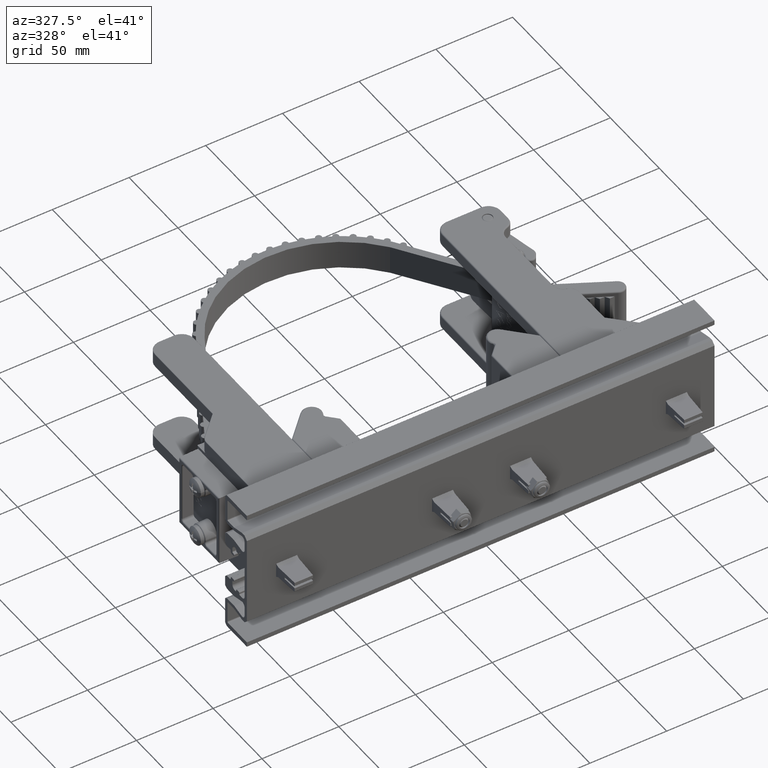
[diagram: clean part render]
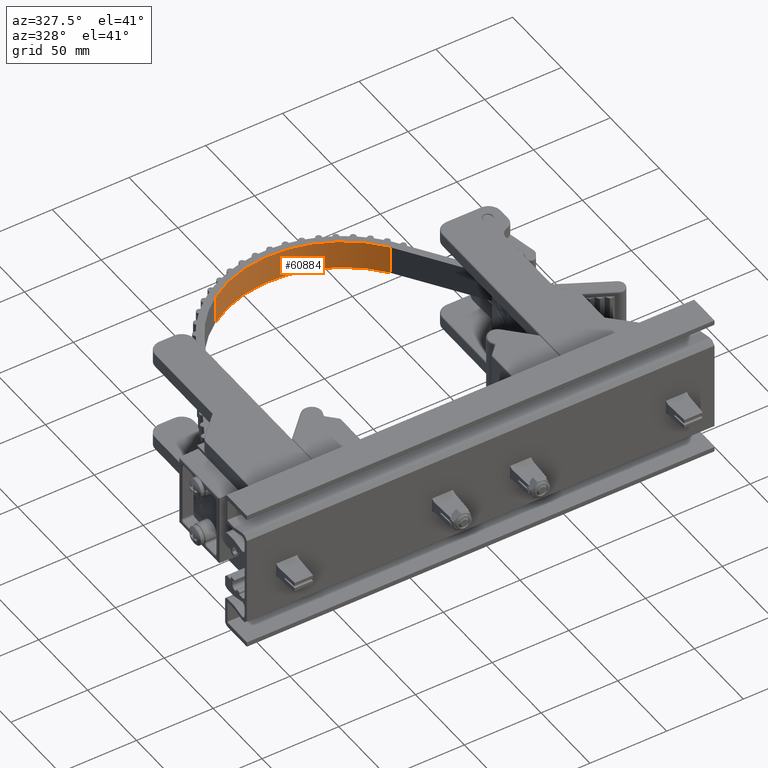
[diagram: same view with one face highlighted and labeled with its STEP entity id]
A machine part, auxiliary view. The second image highlights one B-rep face of the part: STEP entity #60884.
In plain terms, the highlighted cylindrical surface (partial cylindrical patch) has radius 76.2 mm, axis along (0, 0, -1).
Its self-contained STEP definition (entity closure, byte-faithful):
#546 = CARTESIAN_POINT ( 'NONE',  ( -4.917234179520591800, -0.8125000000000006700, 0.3650000000000000500 ) ) ;
#550 = CARTESIAN_POINT ( 'NONE',  ( -7.753629914144911000, -3.808035618942109800, -0.3649999999999999900 ) ) ;
#551 = CARTESIAN_POINT ( 'NONE',  ( -4.917234179520591800, -0.8125000000000001100, -0.3649999999999999900 ) ) ;
#552 = CARTESIAN_POINT ( 'NONE',  ( -7.753629914144911000, -3.808035618942109800, 0.3650000000000000500 ) ) ;
#17324 = DIRECTION ( 'NONE',  ( -1.000000000000000000, 0.0000000000000000000, 0.0000000000000000000 ) ) ;
#17328 = DIRECTION ( 'NONE',  ( 0.0000000000000000000, 0.0000000000000000000, -1.000000000000000000 ) ) ;
#17329 = CARTESIAN_POINT ( 'NONE',  ( -4.753629914144910100, -3.808035618942109800, 9.210715899243375300 ) ) ;
#17804 = AXIS2_PLACEMENT_3D ( 'NONE', #17329, #17328, #17324 ) ;
#18164 = AXIS2_PLACEMENT_3D ( 'NONE', #37239, #37245, #37247 ) ;
#18165 = AXIS2_PLACEMENT_3D ( 'NONE', #37381, #37384, #37386 ) ;
#22209 = LINE ( 'NONE', #37341, #22213 ) ;
#22211 = CIRCLE ( 'NONE', #18164, 3.000000000000000400 ) ;
#22213 = VECTOR ( 'NONE', #37343, 39.37007874015748100 ) ;
#22215 = LINE ( 'NONE', #37371, #22220 ) ;
#22220 = VECTOR ( 'NONE', #37373, 39.37007874015748100 ) ;
#22222 = CIRCLE ( 'NONE', #18165, 3.000000000000000900 ) ;
#32173 = VERTEX_POINT ( 'NONE', #546 ) ;
#32178 = VERTEX_POINT ( 'NONE', #550 ) ;
#32179 = VERTEX_POINT ( 'NONE', #551 ) ;
#32180 = VERTEX_POINT ( 'NONE', #552 ) ;
#34208 = EDGE_LOOP ( 'NONE', ( #77875, #77873, #77877, #77879 ) ) ;
#37239 = CARTESIAN_POINT ( 'NONE',  ( -4.753629914144910100, -3.808035618942109800, 0.3650000000000000500 ) ) ;
#37245 = DIRECTION ( 'NONE',  ( 0.0000000000000000000, 0.0000000000000000000, 1.000000000000000000 ) ) ;
#37247 = DIRECTION ( 'NONE',  ( 1.000000000000000000, 0.0000000000000000000, 0.0000000000000000000 ) ) ;
#37341 = CARTESIAN_POINT ( 'NONE',  ( -4.917234179520587400, -0.8125000000000001100, 0.3649999999999999900 ) ) ;
#37343 = DIRECTION ( 'NONE',  ( 0.0000000000000000000, 0.0000000000000000000, -1.000000000000000000 ) ) ;
#37371 = CARTESIAN_POINT ( 'NONE',  ( -7.753629914144911000, -3.808035618942109800, 9.210715899243375300 ) ) ;
#37373 = DIRECTION ( 'NONE',  ( 0.0000000000000000000, 0.0000000000000000000, -1.000000000000000000 ) ) ;
#37381 = CARTESIAN_POINT ( 'NONE',  ( -4.753629914144910100, -3.808035618942109800, -0.3649999999999999900 ) ) ;
#37384 = DIRECTION ( 'NONE',  ( -0.0000000000000000000, -0.0000000000000000000, 1.000000000000000000 ) ) ;
#37386 = DIRECTION ( 'NONE',  ( -1.000000000000000000, 0.0000000000000000000, 0.0000000000000000000 ) ) ;
#60884 = ADVANCED_FACE ( 'NONE', ( #69166 ), #69175, .F. ) ;
#62013 = EDGE_CURVE ( 'NONE', #32173, #32180, #22211, .T. ) ;
#62019 = EDGE_CURVE ( 'NONE', #32173, #32179, #22209, .T. ) ;
#62026 = EDGE_CURVE ( 'NONE', #32180, #32178, #22215, .T. ) ;
#62029 = EDGE_CURVE ( 'NONE', #32179, #32178, #22222, .T. ) ;
#69166 = FACE_OUTER_BOUND ( 'NONE', #34208, .T. ) ;
#69175 = CYLINDRICAL_SURFACE ( 'NONE', #17804, 3.000000000000000900 ) ;
#77873 = ORIENTED_EDGE ( 'NONE', *, *, #62026, .T. ) ;
#77875 = ORIENTED_EDGE ( 'NONE', *, *, #62013, .T. ) ;
#77877 = ORIENTED_EDGE ( 'NONE', *, *, #62029, .F. ) ;
#77879 = ORIENTED_EDGE ( 'NONE', *, *, #62019, .F. ) ;